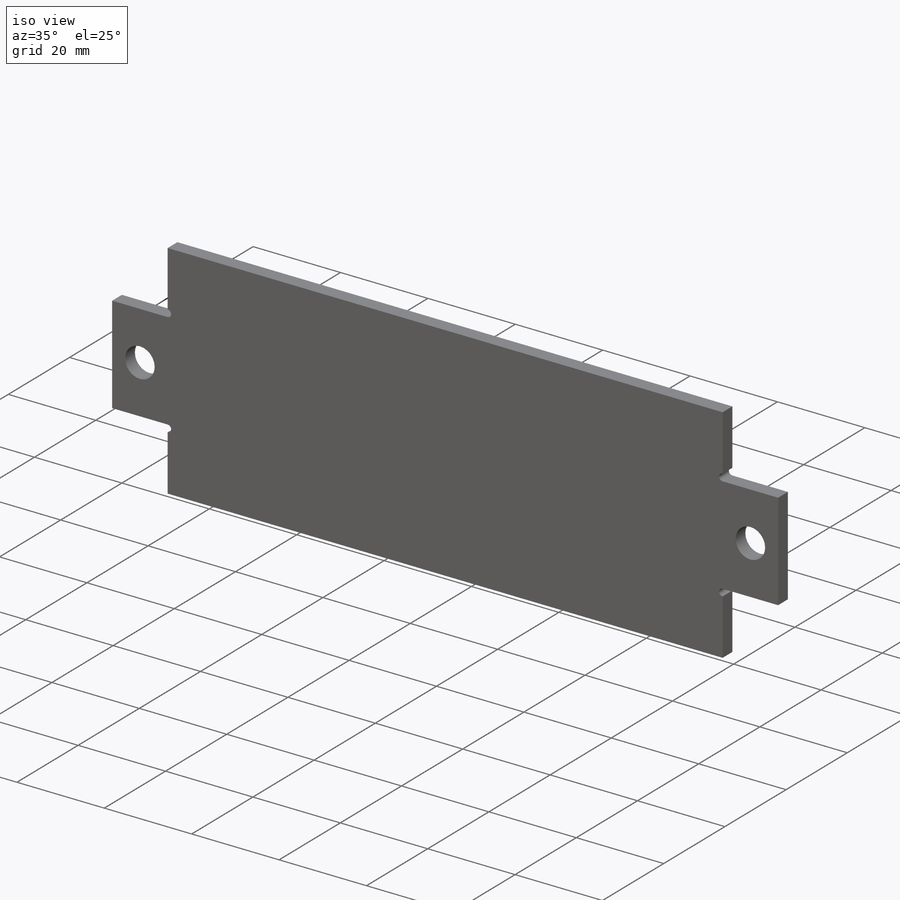
[diagram: iso view]
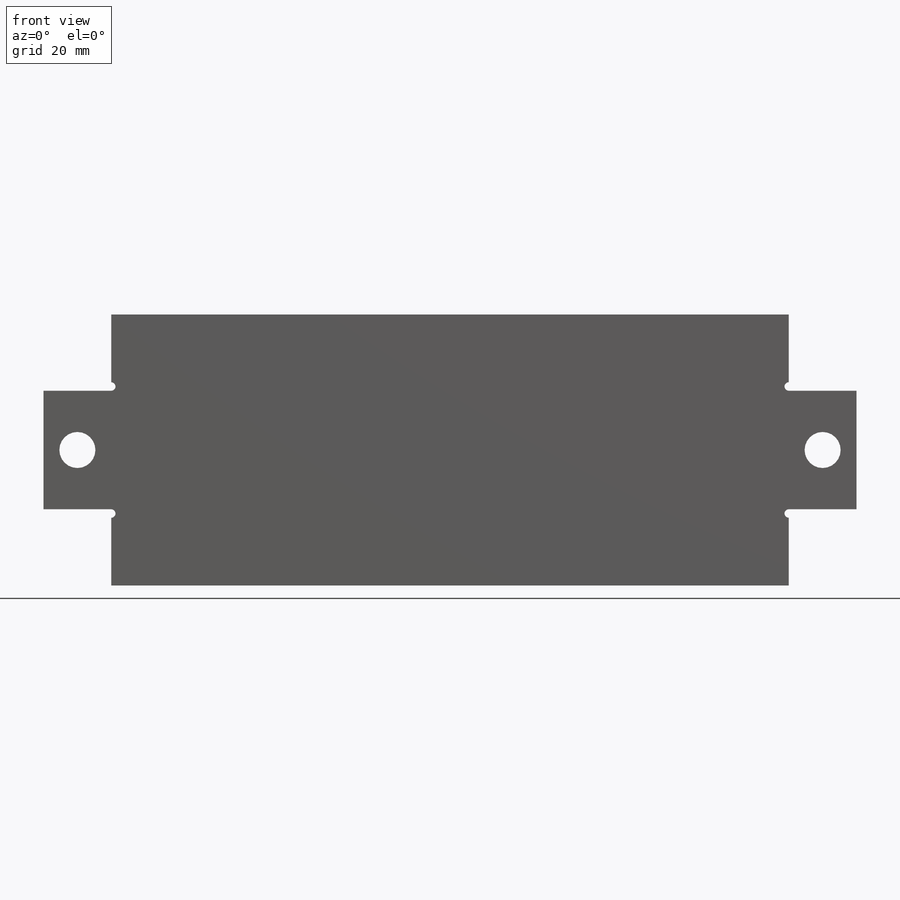
[diagram: front view]
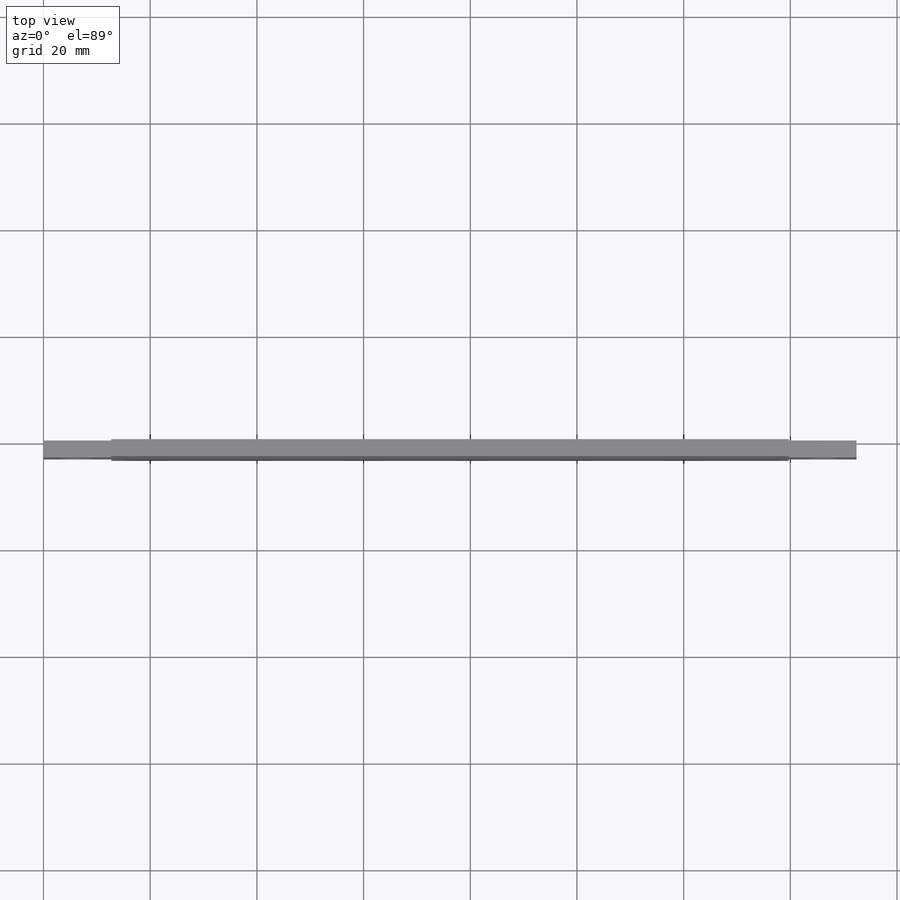
[diagram: top view]
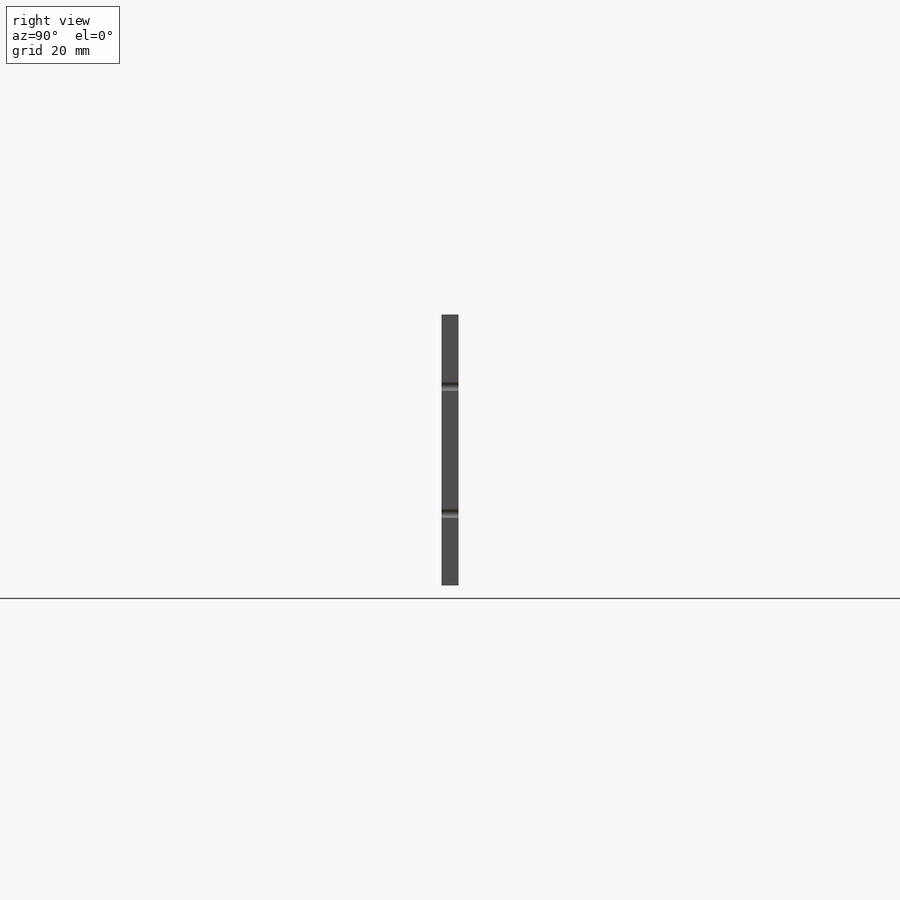
[diagram: right view]
SOLIDWORKS PART (.sldprt)
format: sldprt  version: not decoded by parser v0  size: 254,464 bytes
history: native  units: mm
features: sketch x7, cut_extrude x2, hole x2, material x1, extrude x1 (+13 scaffold rows collapsed)
feature tree (26):
  scaffold x13  (default folders/planes/origin — collapsed)
  material  "6061-T6 (SS)"
  sketch  "Sketch1"  dims[c1.D1=57.15mm c1.D2=152.4mm c2.D1=50.8mm]
  extrude  "Boss-Extrude1"  Depth=3.175mm
  sketch  "Sketch2"  dims[c1.D1=~17.72043mm c1.D2=~14.032917mm c2.D1=~17.72043mm c2.D2=~14.032917mm c3.D1=~17.72043mm c3.D2=~14.640165mm c4.D1=~17.72043mm c4.D2=~14.640165mm c5.D1=12.7mm c5.D2=22.225mm]
  cut_extrude  "Cut-Extrude1"  [1 undecoded]
  sketch  "Sketch3"  dims[D1=1.5875mm]
  cut_extrude  "Cut-Extrude2"  [1 undecoded]
  hole  "1/4 Clearance Hole1"  Diameter=6.7564mm Depth=3.175mm
  sketch  "Sketch5"  dims[D1=~7.099516mm]
  sketch  "Sketch4"  dims[hole-wizard template sketch: 60 standard entries collapsed; hole parameters kept: c18.Thru Hole Depth=3.175mm]
  hole  "#10 Clearance Hole1"  Diameter=5.1054mm Depth=3.175mm
  sketch  "Sketch7"  dims[D1=14.5mm D2=4.7625mm]
  sketch  "Sketch6"  dims[hole-wizard template sketch: 60 standard entries collapsed; hole parameters kept: c18.Thru Hole Depth=3.175mm]
decode coverage: 10 of 12 modeling features carry decoded parameters
note: ~ marks probable driven/reference dimensions
note: 2 parameter values undecoded
note: suppression state not decoded; provenance and decode notes live in map.json
